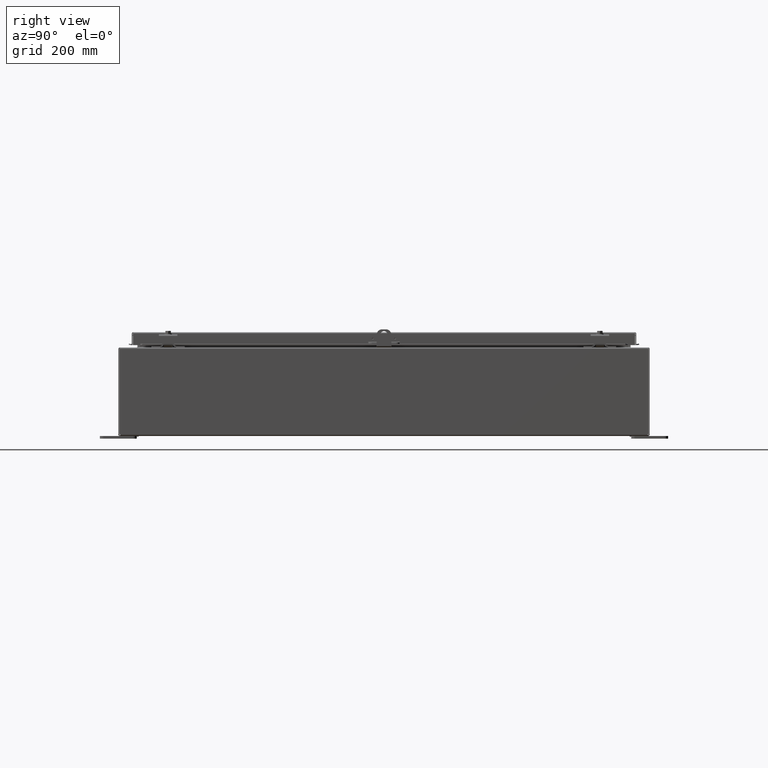
[diagram: clean part render]
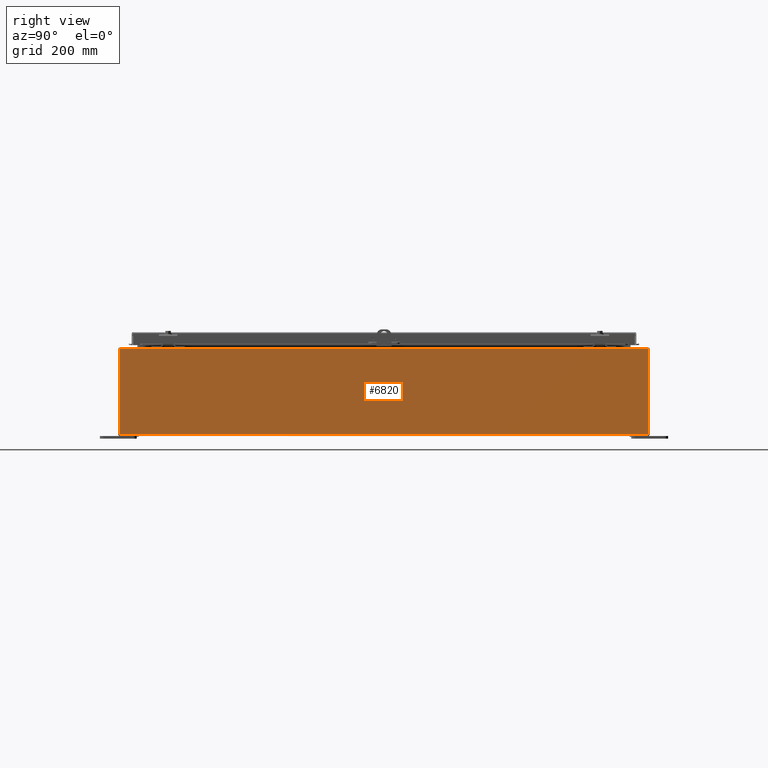
[diagram: same view with one face highlighted and labeled with its STEP entity id]
A machine part, right view. The second image highlights one B-rep face of the part: STEP entity #6820.
In plain terms, the highlighted planar face has unit normal (-1, 0, 0).
Its self-contained STEP definition (entity closure, byte-faithful):
#5832=CARTESIAN_POINT('',(15.000000000000023,17.914951456543992,5.894750000000001));
#5833=VERTEX_POINT('',#5832);
#5865=CARTESIAN_POINT('',(15.000000000000018,-17.914951456543989,5.894750000000007));
#5866=VERTEX_POINT('',#5865);
#5880=CARTESIAN_POINT('',(15.000000000000023,17.914951456543992,5.894750000000001));
#5881=DIRECTION('',(0.0,-1.0,0.0));
#5882=VECTOR('',#5881,35.829902913087977);
#5883=LINE('',#5880,#5882);
#5884=EDGE_CURVE('',#5833,#5866,#5883,.T.);
#6366=CARTESIAN_POINT('',(15.000000000000021,-17.920999999999999,5.894750000000006));
#6367=VERTEX_POINT('',#6366);
#6374=CARTESIAN_POINT('',(15.000000000000023,-17.914951456543989,5.894750000000007));
#6375=DIRECTION('',(0.0,-1.0,0.0));
#6376=VECTOR('',#6375,0.006048543456007);
#6377=LINE('',#6374,#6376);
#6378=EDGE_CURVE('',#5866,#6367,#6377,.T.);
#6637=CARTESIAN_POINT('',(15.000000000000021,17.920999999999999,5.894750000000001));
#6638=VERTEX_POINT('',#6637);
#6639=CARTESIAN_POINT('',(15.000000000000023,17.920999999999999,5.894750000000001));
#6640=DIRECTION('',(0.0,-1.0,0.0));
#6641=VECTOR('',#6640,0.006048543456007);
#6642=LINE('',#6639,#6641);
#6643=EDGE_CURVE('',#6638,#5833,#6642,.T.);
#6668=CARTESIAN_POINT('',(14.999999999999996,17.920999999999999,0.130039389787803));
#6669=VERTEX_POINT('',#6668);
#6670=CARTESIAN_POINT('',(15.000000000000025,17.920999999999999,5.894750000000001));
#6671=DIRECTION('',(0.0,0.0,-1.0));
#6672=VECTOR('',#6671,5.764710610212198);
#6673=LINE('',#6670,#6672);
#6674=EDGE_CURVE('',#6638,#6669,#6673,.T.);
#6708=CARTESIAN_POINT('',(14.999999999999993,-17.882766839324361,0.105250000000001));
#6709=VERTEX_POINT('',#6708);
#6716=CARTESIAN_POINT('',(14.999999999999996,-17.920999999999999,0.130039389787806));
#6717=VERTEX_POINT('',#6716);
#6718=CARTESIAN_POINT('',(14.999999999999993,-17.937891921115423,0.062108078884584));
#6719=DIRECTION('',(-1.0,0.0,0.0));
#6720=DIRECTION('',(0.0,0.0,1.0));
#6721=AXIS2_PLACEMENT_3D('',#6718,#6719,#6720);
#6722=CIRCLE('',#6721,0.07);
#6723=EDGE_CURVE('',#6717,#6709,#6722,.T.);
#6787=CARTESIAN_POINT('',(15.000000000000011,6.993531E-016,3.009483078884583));
#6788=DIRECTION('',(-1.0,0.0,0.0));
#6789=DIRECTION('',(0.0,0.0,1.0));
#6790=AXIS2_PLACEMENT_3D('',#6787,#6788,#6789);
#6791=PLANE('',#6790);
#6792=ORIENTED_EDGE('',*,*,#6643,.T.);
#6793=ORIENTED_EDGE('',*,*,#5884,.T.);
#6794=ORIENTED_EDGE('',*,*,#6378,.T.);
#6795=CARTESIAN_POINT('',(14.999999999999993,-17.920999999999999,0.130039389787806));
#6796=DIRECTION('',(0.0,0.0,1.0));
#6797=VECTOR('',#6796,5.764710610212201);
#6798=LINE('',#6795,#6797);
#6799=EDGE_CURVE('',#6717,#6367,#6798,.T.);
#6800=ORIENTED_EDGE('',*,*,#6799,.F.);
#6801=ORIENTED_EDGE('',*,*,#6723,.T.);
#6802=CARTESIAN_POINT('',(14.999999999999993,17.882766839324361,0.105250000000001));
#6803=VERTEX_POINT('',#6802);
#6804=CARTESIAN_POINT('',(14.999999999999996,-17.882766839324361,0.105250000000001));
#6805=DIRECTION('',(0.0,1.0,0.0));
#6806=VECTOR('',#6805,35.765533678648723);
#6807=LINE('',#6804,#6806);
#6808=EDGE_CURVE('',#6709,#6803,#6807,.T.);
#6809=ORIENTED_EDGE('',*,*,#6808,.T.);
#6810=CARTESIAN_POINT('',(14.999999999999993,17.937891921115416,0.062108078884578));
#6811=DIRECTION('',(-1.0,0.0,0.0));
#6812=DIRECTION('',(0.0,0.0,1.0));
#6813=AXIS2_PLACEMENT_3D('',#6810,#6811,#6812);
#6814=CIRCLE('',#6813,0.07);
#6815=EDGE_CURVE('',#6803,#6669,#6814,.T.);
#6816=ORIENTED_EDGE('',*,*,#6815,.T.);
#6817=ORIENTED_EDGE('',*,*,#6674,.F.);
#6818=EDGE_LOOP('',(#6792,#6793,#6794,#6800,#6801,#6809,#6816,#6817));
#6819=FACE_OUTER_BOUND('',#6818,.T.);
#6820=ADVANCED_FACE('',(#6819),#6791,.F.);